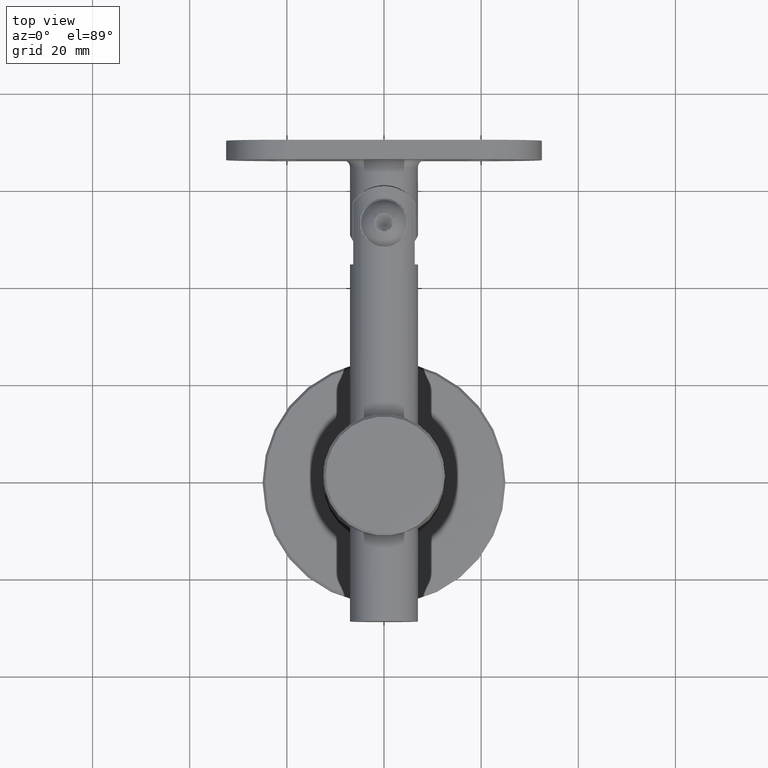
[diagram: clean part render]
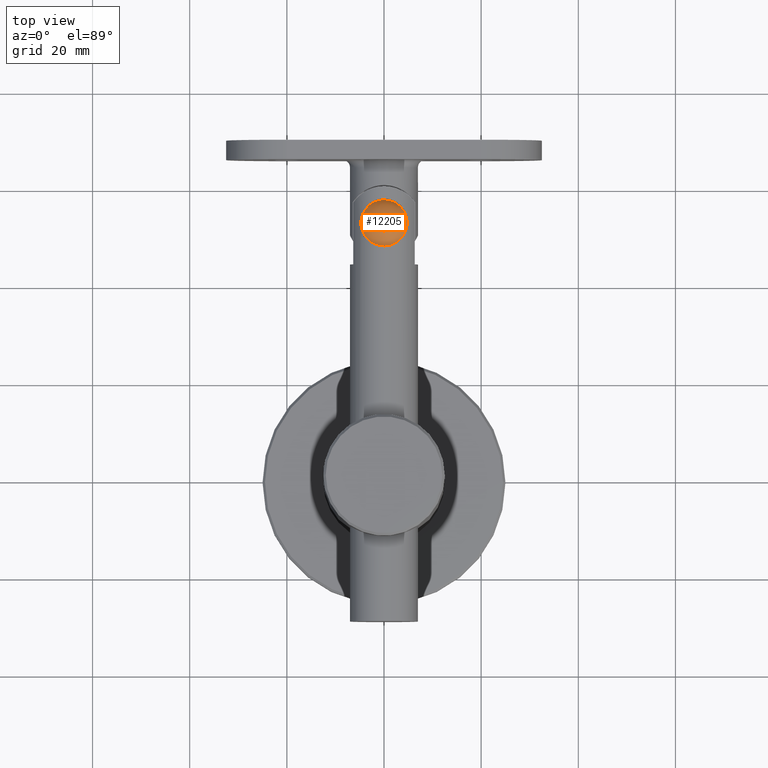
[diagram: same view with one face highlighted and labeled with its STEP entity id]
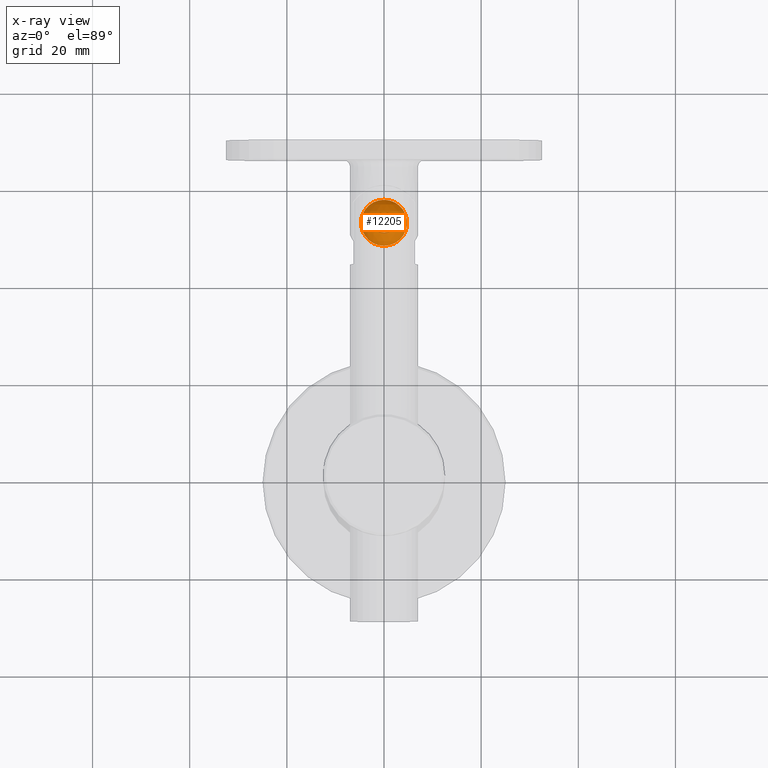
[diagram: x-ray of the same camera — body ghosted, the highlighted face saturated]
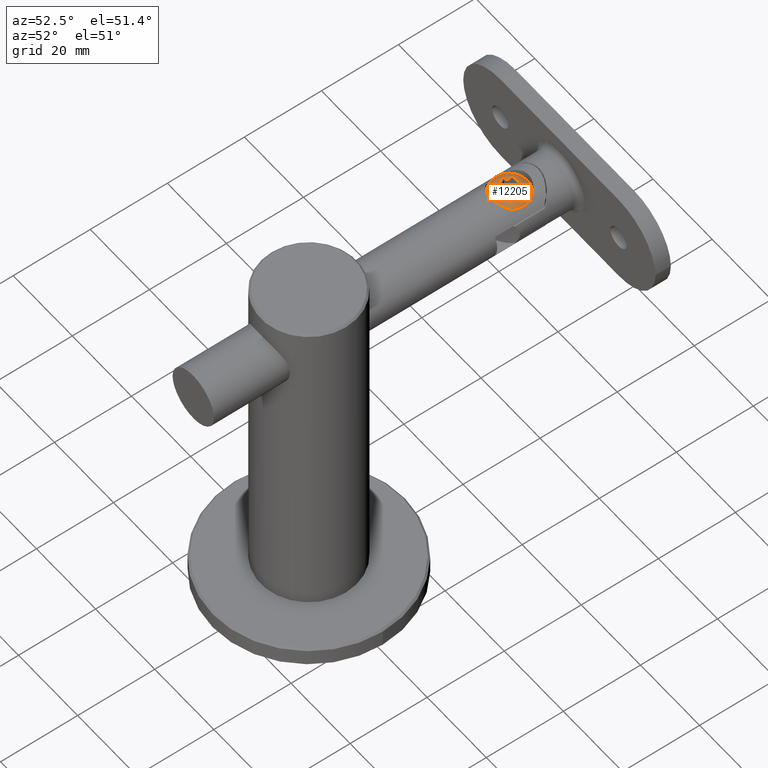
[diagram: same view with one face highlighted and labeled with its STEP entity id]
A machine part, top view. The second image highlights one B-rep face of the part: STEP entity #12205.
The next image is the same camera in x-ray: the body ghosted, the highlighted face saturated — about 0% of this face is hidden behind the body in this view.
A second angle (auxiliary view) of the same face is appended — the face is thin or edge-on in the first view.
In plain terms, the highlighted spherical surface has radius 5.3123 mm.
Its self-contained STEP definition (entity closure, byte-faithful):
#461 = DIRECTION ( 'NONE',  ( -0.0000000000000000000, -1.000000000000000000, -0.0000000000000000000 ) ) ;
#2114 = CARTESIAN_POINT ( 'NONE',  ( 0.0000000000000000000, 2.550000000000000300, 0.0000000000000000000 ) ) ;
#2363 = EDGE_LOOP ( 'NONE', ( #14204 ) ) ;
#3468 = DIRECTION ( 'NONE',  ( -0.0000000000000000000, -1.000000000000000000, -0.0000000000000000000 ) ) ;
#3833 = CIRCLE ( 'NONE', #6342, 1.982050807568876300 ) ;
#3984 = AXIS2_PLACEMENT_3D ( 'NONE', #2114, #461, #15467 ) ;
#4461 = EDGE_CURVE ( 'NONE', #16349, #16349, #9002, .T. ) ;
#5136 = CARTESIAN_POINT ( 'NONE',  ( 0.0000000000000000000, 0.0000000000000000000, 0.0000000000000000000 ) ) ;
#5363 = CARTESIAN_POINT ( 'NONE',  ( 0.0000000000000000000, 2.550000000000000300, -4.750000000000000000 ) ) ;
#6342 = AXIS2_PLACEMENT_3D ( 'NONE', #5136, #3468, #17008 ) ;
#6820 = EDGE_CURVE ( 'NONE', #14952, #14952, #3833, .T. ) ;
#8021 = SPHERICAL_SURFACE ( 'NONE', #15726, 5.312326351066129600 ) ;
#8651 = DIRECTION ( 'NONE',  ( 1.000000000000000000, 0.0000000000000000000, 0.0000000000000000000 ) ) ;
#8673 = ORIENTED_EDGE ( 'NONE', *, *, #4461, .T. ) ;
#9002 = CIRCLE ( 'NONE', #3984, 4.750000000000000000 ) ;
#10209 = DIRECTION ( 'NONE',  ( 0.0000000000000000000, 0.0000000000000000000, 1.000000000000000000 ) ) ;
#10340 = CARTESIAN_POINT ( 'NONE',  ( 0.0000000000000000000, 4.928720509061874600, 0.0000000000000000000 ) ) ;
#12205 = ADVANCED_FACE ( 'NONE', ( #12934, #13418 ), #8021, .T. ) ;
#12934 = FACE_OUTER_BOUND ( 'NONE', #14582, .T. ) ;
#13418 = FACE_OUTER_BOUND ( 'NONE', #2363, .T. ) ;
#14204 = ORIENTED_EDGE ( 'NONE', *, *, #6820, .F. ) ;
#14238 = CARTESIAN_POINT ( 'NONE',  ( 0.0000000000000000000, 0.0000000000000000000, -1.982050807568876300 ) ) ;
#14582 = EDGE_LOOP ( 'NONE', ( #8673 ) ) ;
#14952 = VERTEX_POINT ( 'NONE', #14238 ) ;
#15467 = DIRECTION ( 'NONE',  ( 0.0000000000000000000, 0.0000000000000000000, -1.000000000000000000 ) ) ;
#15726 = AXIS2_PLACEMENT_3D ( 'NONE', #10340, #10209, #8651 ) ;
#16349 = VERTEX_POINT ( 'NONE', #5363 ) ;
#17008 = DIRECTION ( 'NONE',  ( 0.0000000000000000000, 0.0000000000000000000, -1.000000000000000000 ) ) ;